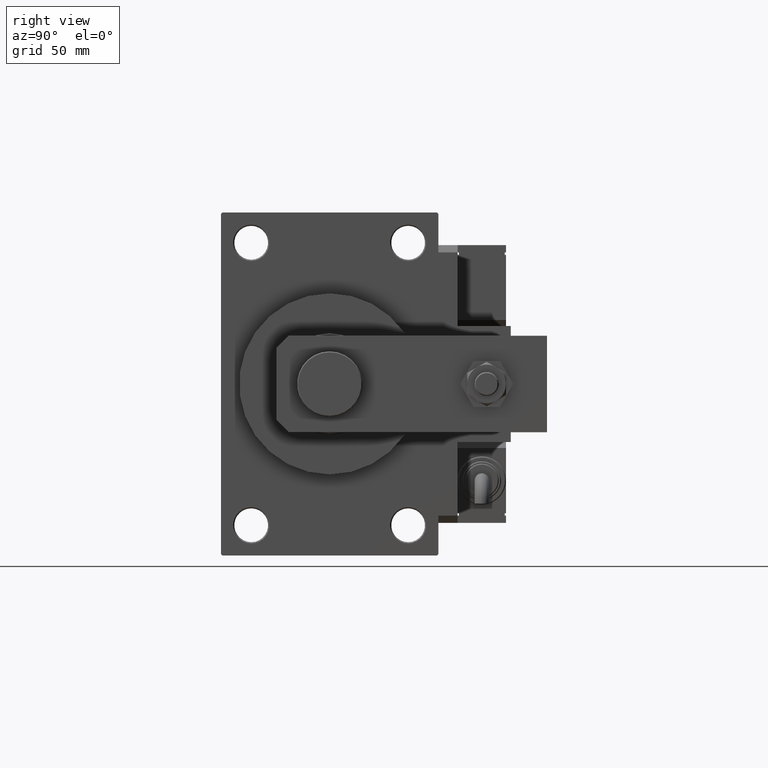
[diagram: clean part render]
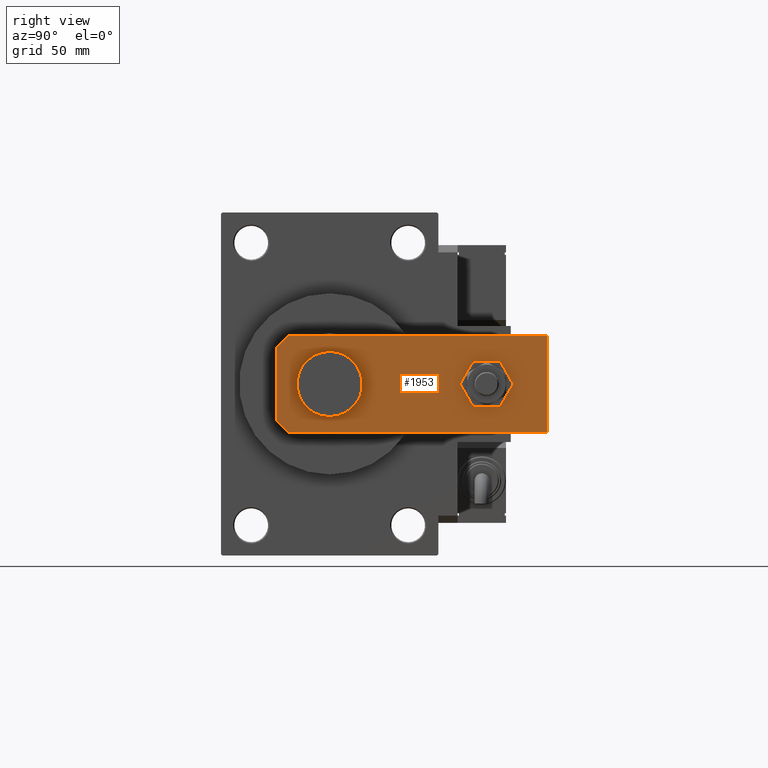
[diagram: same view with one face highlighted and labeled with its STEP entity id]
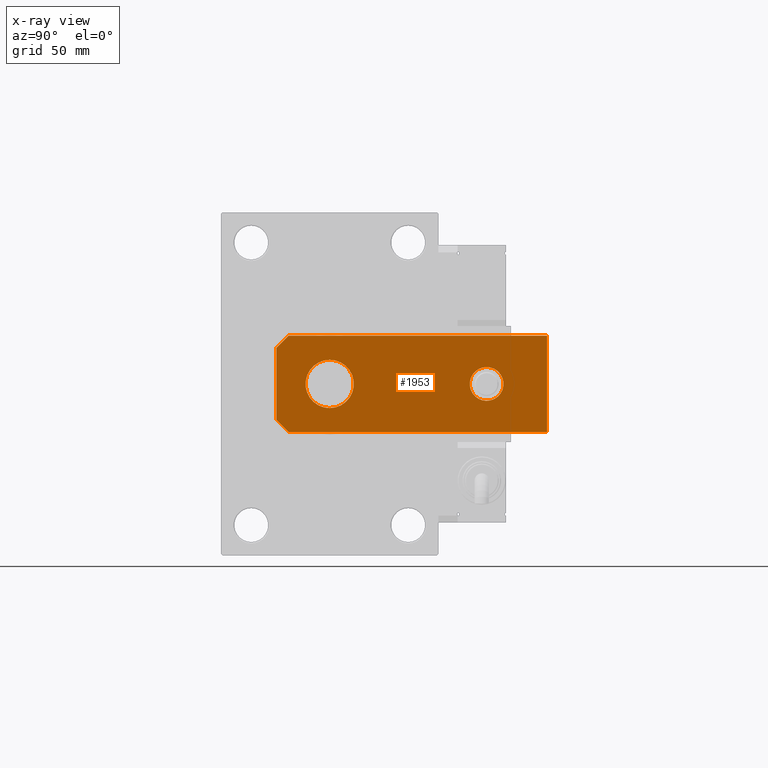
[diagram: x-ray of the same camera — body ghosted, the highlighted face saturated]
A machine part, right view. The second image highlights one B-rep face of the part: STEP entity #1953.
The next image is the same camera in x-ray: the body ghosted, the highlighted face saturated — about 0% of this face is hidden behind the body in this view.
In plain terms, the highlighted planar face has unit normal (-1, 0, 0).
Its self-contained STEP definition (entity closure, byte-faithful):
#111 = DIRECTION ( 'NONE',  ( 1.000000000000000000, 0.000000000000000000, 0.000000000000000000 ) ) ;
#1188 = DIRECTION ( 'NONE',  ( 0.000000000000000000, 0.000000000000000000, 1.000000000000000000 ) ) ;
#1953 = ADVANCED_FACE ( 'NONE', ( #19499, #28395, #40796 ), #11629, .F. ) ;
#2455 = LINE ( 'NONE', #42951, #8950 ) ;
#2544 = CARTESIAN_POINT ( 'NONE',  ( 19.99999999999999645, 112.0000000000000000, 0.000000000000000000 ) ) ;
#2969 = EDGE_CURVE ( 'NONE', #33287, #36872, #18454, .T. ) ;
#3419 = CARTESIAN_POINT ( 'NONE',  ( 10.00000000000000178, 21.99999999999999289, 0.000000000000000000 ) ) ;
#3618 = CARTESIAN_POINT ( 'NONE',  ( 0.000000000000000000, 21.99999999999999289, 0.000000000000000000 ) ) ;
#3724 = VERTEX_POINT ( 'NONE', #3419 ) ;
#4175 = EDGE_CURVE ( 'NONE', #39100, #49334, #12524, .T. ) ;
#4519 = AXIS2_PLACEMENT_3D ( 'NONE', #51986, #43876, #47922 ) ;
#5962 = DIRECTION ( 'NONE',  ( 1.000000000000000000, 0.000000000000000000, 0.000000000000000000 ) ) ;
#6954 = VERTEX_POINT ( 'NONE', #46560 ) ;
#7181 = CARTESIAN_POINT ( 'NONE',  ( 19.99999999999999645, 112.0000000000000000, 0.000000000000000000 ) ) ;
#7841 = CARTESIAN_POINT ( 'NONE',  ( 15.00000000000001066, 0.000000000000000000, 0.000000000000000000 ) ) ;
#7893 = LINE ( 'NONE', #2544, #38044 ) ;
#8409 = DIRECTION ( 'NONE',  ( -1.548860246407863583E-16, 1.000000000000000000, 0.000000000000000000 ) ) ;
#8679 = CARTESIAN_POINT ( 'NONE',  ( 20.00000000000001421, 0.000000000000000000, 0.000000000000000000 ) ) ;
#8950 = VECTOR ( 'NONE', #5962, 1000.000000000000000 ) ;
#9910 = AXIS2_PLACEMENT_3D ( 'NONE', #37916, #1188, #17658 ) ;
#10872 = CARTESIAN_POINT ( 'NONE',  ( 20.00000000000001421, 4.999999999999990230, 0.000000000000000000 ) ) ;
#11026 = DIRECTION ( 'NONE',  ( -0.7071067811865465735, 0.7071067811865485719, -0.000000000000000000 ) ) ;
#11629 = PLANE ( 'NONE',  #25654 ) ;
#11715 = CARTESIAN_POINT ( 'NONE',  ( -20.00000000000000355, 112.0000000000000000, 0.000000000000000000 ) ) ;
#12407 = VERTEX_POINT ( 'NONE', #22609 ) ;
#12524 = LINE ( 'NONE', #11715, #53298 ) ;
#12936 = CARTESIAN_POINT ( 'NONE',  ( 20.00000000000001421, 4.999999999999989342, 0.000000000000000000 ) ) ;
#14188 = VERTEX_POINT ( 'NONE', #27937 ) ;
#14766 = DIRECTION ( 'NONE',  ( 1.000000000000000000, 0.000000000000000000, 0.000000000000000000 ) ) ;
#15116 = EDGE_LOOP ( 'NONE', ( #52291, #22102, #49828, #25742, #49189, #47435 ) ) ;
#15226 = DIRECTION ( 'NONE',  ( -1.000000000000000000, 0.000000000000000000, 0.000000000000000000 ) ) ;
#15378 = EDGE_CURVE ( 'NONE', #6954, #3724, #29601, .T. ) ;
#16489 = ORIENTED_EDGE ( 'NONE', *, *, #26706, .T. ) ;
#17329 = LINE ( 'NONE', #8679, #40048 ) ;
#17658 = DIRECTION ( 'NONE',  ( 1.000000000000000000, 0.000000000000000000, 0.000000000000000000 ) ) ;
#18454 = LINE ( 'NONE', #10872, #23948 ) ;
#19499 = FACE_OUTER_BOUND ( 'NONE', #15116, .T. ) ;
#19660 = VERTEX_POINT ( 'NONE', #45336 ) ;
#20285 = CARTESIAN_POINT ( 'NONE',  ( -20.00000000000000355, 112.0000000000000000, 0.000000000000000000 ) ) ;
#20346 = EDGE_CURVE ( 'NONE', #44365, #39100, #7893, .T. ) ;
#21891 = DIRECTION ( 'NONE',  ( 0.000000000000000000, 0.000000000000000000, 1.000000000000000000 ) ) ;
#22102 = ORIENTED_EDGE ( 'NONE', *, *, #35421, .T. ) ;
#22609 = CARTESIAN_POINT ( 'NONE',  ( -7.000000000000004441, 87.00000000000000000, 0.000000000000000000 ) ) ;
#23948 = VECTOR ( 'NONE', #35201, 1000.000000000000000 ) ;
#25654 = AXIS2_PLACEMENT_3D ( 'NONE', #43797, #35701, #48360 ) ;
#25742 = ORIENTED_EDGE ( 'NONE', *, *, #20346, .F. ) ;
#26706 = EDGE_CURVE ( 'NONE', #19660, #12407, #27822, .T. ) ;
#27265 = CARTESIAN_POINT ( 'NONE',  ( -15.00000000000001066, 0.000000000000000000, 0.000000000000000000 ) ) ;
#27822 = CIRCLE ( 'NONE', #4519, 7.000000000000004441 ) ;
#27937 = CARTESIAN_POINT ( 'NONE',  ( -15.00000000000001066, 0.000000000000000000, 0.000000000000000000 ) ) ;
#28395 = FACE_BOUND ( 'NONE', #50428, .T. ) ;
#29601 = CIRCLE ( 'NONE', #31341, 10.00000000000000178 ) ;
#30703 = CARTESIAN_POINT ( 'NONE',  ( 0.000000000000000000, 21.99999999999999289, 0.000000000000000000 ) ) ;
#31242 = DIRECTION ( 'NONE',  ( 0.000000000000000000, 0.000000000000000000, 1.000000000000000000 ) ) ;
#31341 = AXIS2_PLACEMENT_3D ( 'NONE', #3618, #21891, #111 ) ;
#31552 = AXIS2_PLACEMENT_3D ( 'NONE', #30703, #31242, #14766 ) ;
#32951 = EDGE_CURVE ( 'NONE', #14188, #36872, #2455, .T. ) ;
#33287 = VERTEX_POINT ( 'NONE', #12936 ) ;
#33336 = DIRECTION ( 'NONE',  ( -9.293161478447180511E-17, -1.000000000000000000, 0.000000000000000000 ) ) ;
#34109 = VECTOR ( 'NONE', #11026, 1000.000000000000000 ) ;
#34323 = ORIENTED_EDGE ( 'NONE', *, *, #46596, .T. ) ;
#34949 = CIRCLE ( 'NONE', #9910, 7.000000000000004441 ) ;
#35201 = DIRECTION ( 'NONE',  ( -0.7071067811865485719, -0.7071067811865465735, -0.000000000000000000 ) ) ;
#35421 = EDGE_CURVE ( 'NONE', #14188, #49334, #51549, .T. ) ;
#35701 = DIRECTION ( 'NONE',  ( -0.000000000000000000, 0.000000000000000000, 1.000000000000000000 ) ) ;
#36872 = VERTEX_POINT ( 'NONE', #7841 ) ;
#37916 = CARTESIAN_POINT ( 'NONE',  ( -2.000174246416480903E-16, 87.00000000000000000, 0.000000000000000000 ) ) ;
#38044 = VECTOR ( 'NONE', #15226, 1000.000000000000000 ) ;
#39100 = VERTEX_POINT ( 'NONE', #20285 ) ;
#40048 = VECTOR ( 'NONE', #8409, 1000.000000000000000 ) ;
#40796 = FACE_BOUND ( 'NONE', #49353, .T. ) ;
#42951 = CARTESIAN_POINT ( 'NONE',  ( -20.00000000000001421, 0.000000000000000000, 0.000000000000000000 ) ) ;
#43797 = CARTESIAN_POINT ( 'NONE',  ( 0.000000000000000000, 0.000000000000000000, 0.000000000000000000 ) ) ;
#43876 = DIRECTION ( 'NONE',  ( 0.000000000000000000, 0.000000000000000000, 1.000000000000000000 ) ) ;
#43930 = ORIENTED_EDGE ( 'NONE', *, *, #15378, .T. ) ;
#44019 = CARTESIAN_POINT ( 'NONE',  ( -20.00000000000001421, 5.000000000000018652, 0.000000000000000000 ) ) ;
#44365 = VERTEX_POINT ( 'NONE', #7181 ) ;
#45336 = CARTESIAN_POINT ( 'NONE',  ( 7.000000000000004441, 87.00000000000000000, 0.000000000000000000 ) ) ;
#46557 = ORIENTED_EDGE ( 'NONE', *, *, #51624, .T. ) ;
#46560 = CARTESIAN_POINT ( 'NONE',  ( -10.00000000000000178, 21.99999999999999289, 0.000000000000000000 ) ) ;
#46596 = EDGE_CURVE ( 'NONE', #12407, #19660, #34949, .T. ) ;
#47435 = ORIENTED_EDGE ( 'NONE', *, *, #2969, .T. ) ;
#47922 = DIRECTION ( 'NONE',  ( 1.000000000000000000, 0.000000000000000000, 0.000000000000000000 ) ) ;
#48360 = DIRECTION ( 'NONE',  ( 1.000000000000000000, 0.000000000000000000, 0.000000000000000000 ) ) ;
#49136 = EDGE_CURVE ( 'NONE', #33287, #44365, #17329, .T. ) ;
#49189 = ORIENTED_EDGE ( 'NONE', *, *, #49136, .F. ) ;
#49334 = VERTEX_POINT ( 'NONE', #44019 ) ;
#49353 = EDGE_LOOP ( 'NONE', ( #43930, #46557 ) ) ;
#49828 = ORIENTED_EDGE ( 'NONE', *, *, #4175, .F. ) ;
#50428 = EDGE_LOOP ( 'NONE', ( #34323, #16489 ) ) ;
#51549 = LINE ( 'NONE', #27265, #34109 ) ;
#51624 = EDGE_CURVE ( 'NONE', #3724, #6954, #53099, .T. ) ;
#51986 = CARTESIAN_POINT ( 'NONE',  ( -2.000174246416480903E-16, 87.00000000000000000, 0.000000000000000000 ) ) ;
#52291 = ORIENTED_EDGE ( 'NONE', *, *, #32951, .F. ) ;
#53099 = CIRCLE ( 'NONE', #31552, 10.00000000000000178 ) ;
#53298 = VECTOR ( 'NONE', #33336, 1000.000000000000000 ) ;